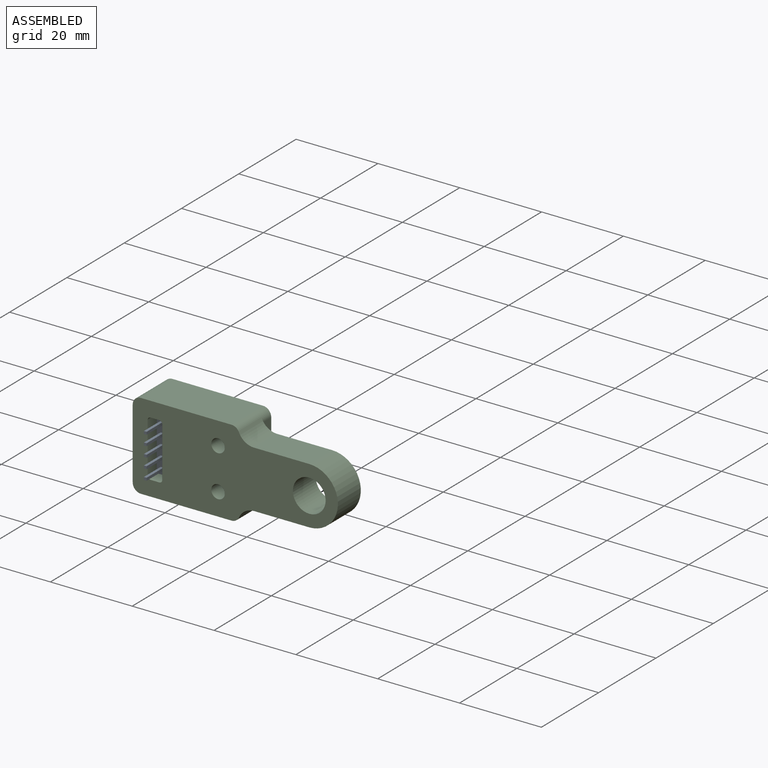
[diagram: assembled view]
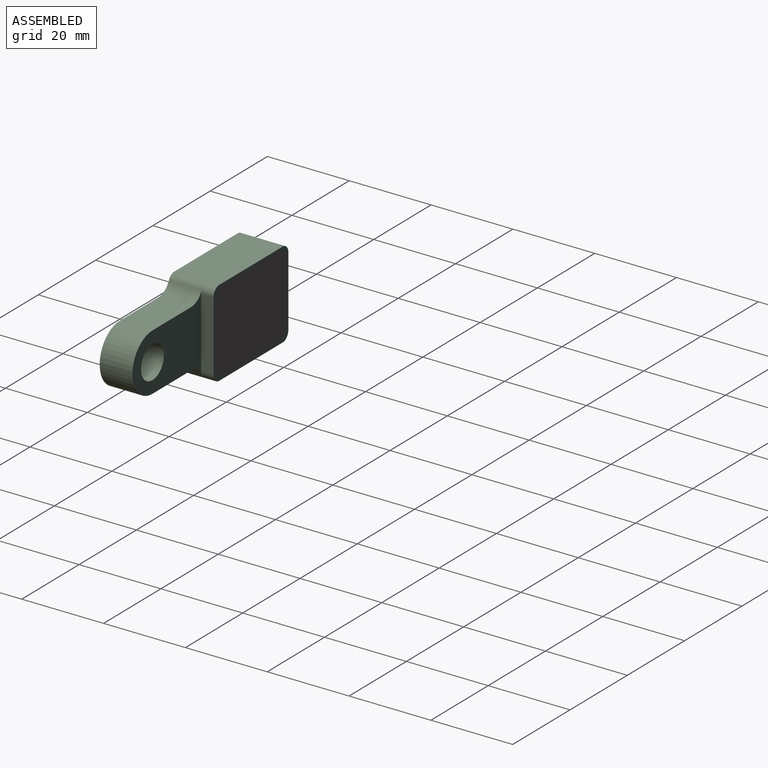
[diagram: assembled view, second angle]
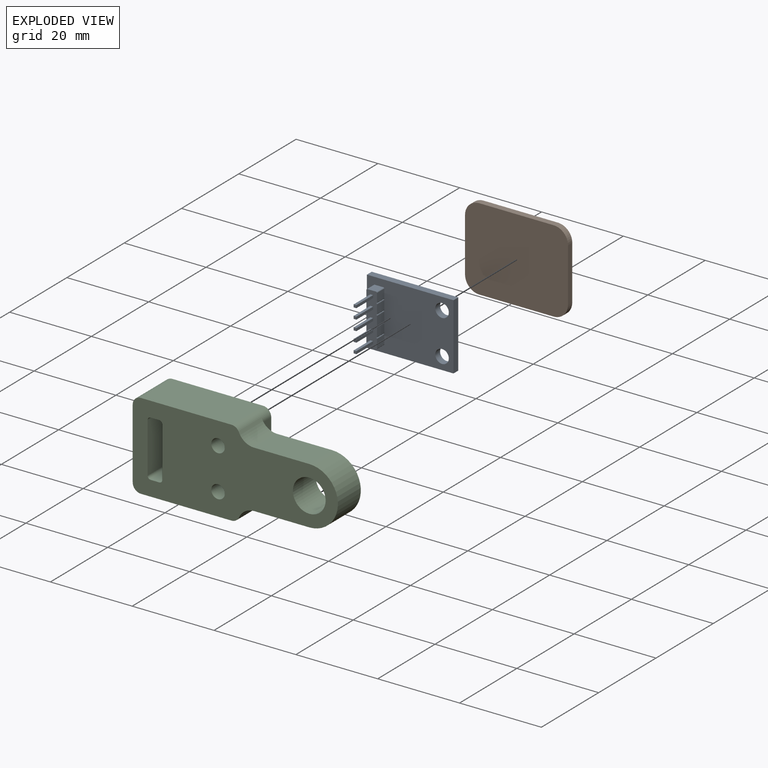
[diagram: exploded view]
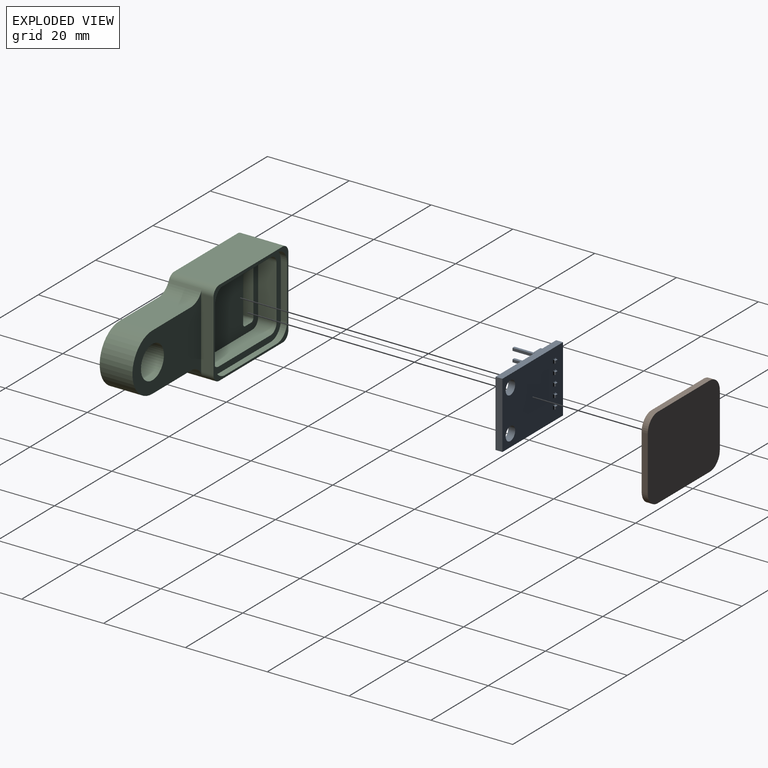
[diagram: exploded view, second angle]
ASSEMBLY  parts=3 mates=2
PART A: 111 faces, bbox 21.2x10.6x16.2 mm
  f0: plane 16.18x1.68mm, normal (-1,0,0), area 27.1mm2, adj f1,f3,f4,f5
  f1: plane 21.16x1.68mm, normal (0,0,1), area 35.5mm2, adj f0,f2,f4,f5
  f2: plane 16.18x1.68mm, normal (1,0,0), area 27.1mm2, adj f1,f3,f4,f5
  f3: plane 21.16x1.68mm, normal (0,0,-1), area 35.5mm2, adj f0,f2,f4,f5
  f4: plane 21.16x16.18mm, normal (0,1,0), area 292.4mm2, adj f0,f1,f2,f3,f6,f7,f23,f24
  f5: plane 21.16x16.18mm, normal (0,-1,0), area 318.4mm2, adj f0,f1,f2,f3,f19,f20,f21,f22
  f6: plane 2.54x2.08mm, normal (1,0,0), area 5.3mm2, adj f4,f8,f23,f25
  f7: plane 2.54x2.08mm, normal (-1,0,0), area 5.3mm2, adj f4,f8,f24,f26
  f8: plane 12.75x2.59mm, normal (0,1,0), area 30.7mm2, adj f6,f7,f10,f11,f12,f13,f23,f24
  f9: plane 0.66x0.66mm, normal (0,1,0), area 0.4mm2, adj f10,f11,f12,f13
  f10: plane 5.84x0.66mm, normal (0,0,1), area 3.9mm2, adj f8,f9,f11,f13
  f11: plane 5.84x0.66mm, normal (1,0,0), area 3.9mm2, adj f8,f9,f10,f12
  f12: plane 5.84x0.66mm, normal (0,0,-1), area 3.9mm2, adj f8,f9,f11,f13
  f13: plane 5.84x0.66mm, normal (-1,0,0), area 3.9mm2, adj f8,f9,f10,f12
  f14: plane 0.66x0.25mm, normal (-1,0,0), area 0.2mm2, adj f15,f17,f18,f19
  f15: plane 0.66x0.25mm, normal (0,0,-1), area 0.2mm2, adj f14,f16,f18,f21
  f16: plane 0.66x0.25mm, normal (1,0,0), area 0.2mm2, adj f15,f17,f18,f22
  f17: plane 0.66x0.25mm, normal (0,0,1), area 0.2mm2, adj f14,f16,f18,f20
  f18: plane 0.66x0.66mm, normal (0,-1,0), area 0.4mm2, adj f14,f15,f16,f17
  f19: cylinder r=0.25mm len=1.17mm, axis (0,0,1), area 0.3mm2, adj f5,f14,f20,f21
  f20: cylinder r=0.25mm len=1.17mm, axis (1,0,0), area 0.3mm2, adj f5,f17,f19,f22
  f21: cylinder r=0.25mm len=1.17mm, axis (-1,0,0), area 0.3mm2, adj f5,f15,f19,f22
  f22: cylinder r=0.25mm len=1.17mm, axis (0,0,-1), area 0.3mm2, adj f5,f16,f20,f21
  f23: cylinder r=0.25mm len=2.54mm, axis (0,-1,0), area 0.7mm2, adj f4,f6,f8,f90
  f24: cylinder r=0.25mm len=2.54mm, axis (0,1,0), area 0.7mm2, adj f4,f7,f8,f91
  f25: cylinder r=0.25mm len=2.54mm, axis (0,1,0), area 0.7mm2, adj f4,f6,f8,f65
  f26: cylinder r=0.25mm len=2.54mm, axis (0,-1,0), area 0.7mm2, adj f4,f7,f8,f64
  f27: cylinder r=0.25mm len=1.17mm, axis (0,0,1), area 0.3mm2, adj f5,f28,f30,f31
  f28: cylinder r=0.25mm len=1.17mm, axis (1,0,0), area 0.3mm2, adj f5,f27,f29,f34
  f29: cylinder r=0.25mm len=1.17mm, axis (0,0,-1), area 0.3mm2, adj f5,f28,f30,f33
  f30: cylinder r=0.25mm len=1.17mm, axis (-1,0,0), area 0.3mm2, adj f5,f27,f29,f32
  f31: plane 0.66x0.25mm, normal (-1,0,0), area 0.2mm2, adj f27,f32,f34,f35
  f32: plane 0.66x0.25mm, normal (0,0,-1), area 0.2mm2, adj f30,f31,f33,f35
  f33: plane 0.66x0.25mm, normal (1,0,0), area 0.2mm2, adj f29,f32,f34,f35
  f34: plane 0.66x0.25mm, normal (0,0,1), area 0.2mm2, adj f28,f31,f33,f35
  f35: plane 0.66x0.66mm, normal (0,-1,0), area 0.4mm2, adj f31,f32,f33,f34
  f36: cylinder r=0.25mm len=1.17mm, axis (0,0,1), area 0.3mm2, adj f5,f37,f39,f40
  f37: cylinder r=0.25mm len=1.17mm, axis (1,0,0), area 0.3mm2, adj f5,f36,f38,f43
  f38: cylinder r=0.25mm len=1.17mm, axis (0,0,-1), area 0.3mm2, adj f5,f37,f39,f42
  f39: cylinder r=0.25mm len=1.17mm, axis (-1,0,0), area 0.3mm2, adj f5,f36,f38,f41
  f40: plane 0.66x0.25mm, normal (-1,0,0), area 0.2mm2, adj f36,f41,f43,f44
  f41: plane 0.66x0.25mm, normal (0,0,-1), area 0.2mm2, adj f39,f40,f42,f44
  f42: plane 0.66x0.25mm, normal (1,0,0), area 0.2mm2, adj f38,f41,f43,f44
  f43: plane 0.66x0.25mm, normal (0,0,1), area 0.2mm2, adj f37,f40,f42,f44
  f44: plane 0.66x0.66mm, normal (0,-1,0), area 0.4mm2, adj f40,f41,f42,f43
  f45: cylinder r=0.25mm len=1.17mm, axis (0,0,1), area 0.3mm2, adj f5,f46,f48,f49
  f46: cylinder r=0.25mm len=1.17mm, axis (1,0,0), area 0.3mm2, adj f5,f45,f47,f52
  f47: cylinder r=0.25mm len=1.17mm, axis (0,0,-1), area 0.3mm2, adj f5,f46,f48,f51
  f48: cylinder r=0.25mm len=1.17mm, axis (-1,0,0), area 0.3mm2, adj f5,f45,f47,f50
  f49: plane 0.66x0.25mm, normal (-1,0,0), area 0.2mm2, adj f45,f50,f52,f53
  f50: plane 0.66x0.25mm, normal (0,0,-1), area 0.2mm2, adj f48,f49,f51,f53
  f51: plane 0.66x0.25mm, normal (1,0,0), area 0.2mm2, adj f47,f50,f52,f53
  f52: plane 0.66x0.25mm, normal (0,0,1), area 0.2mm2, adj f46,f49,f51,f53
  f53: plane 0.66x0.66mm, normal (0,-1,0), area 0.4mm2, adj f49,f50,f51,f52
  f54: cylinder r=0.25mm len=1.17mm, axis (0,0,1), area 0.3mm2, adj f5,f55,f57,f58
  f55: cylinder r=0.25mm len=1.17mm, axis (1,0,0), area 0.3mm2, adj f5,f54,f56,f61
  f56: cylinder r=0.25mm len=1.17mm, axis (0,0,-1), area 0.3mm2, adj f5,f55,f57,f60
  f57: cylinder r=0.25mm len=1.17mm, axis (-1,0,0), area 0.3mm2, adj f5,f54,f56,f59
  f58: plane 0.66x0.25mm, normal (-1,0,0), area 0.2mm2, adj f54,f59,f61,f62
  f59: plane 0.66x0.25mm, normal (0,0,-1), area 0.2mm2, adj f57,f58,f60,f62
  f60: plane 0.66x0.25mm, normal (1,0,0), area 0.2mm2, adj f56,f59,f61,f62
  f61: plane 0.66x0.25mm, normal (0,0,1), area 0.2mm2, adj f55,f58,f60,f62
  f62: plane 0.66x0.66mm, normal (0,-1,0), area 0.4mm2, adj f58,f59,f60,f61
  f63: plane 2.54x2.08mm, normal (-1,0,0), area 5.3mm2, adj f4,f8,f64,f68
  f64: cylinder r=0.25mm len=2.54mm, axis (0,1,0), area 0.7mm2, adj f4,f8,f26,f63
  f65: cylinder r=0.25mm len=2.54mm, axis (0,-1,0), area 0.7mm2, adj f4,f8,f25,f66
  f66: plane 2.54x2.08mm, normal (1,0,0), area 5.3mm2, adj f4,f8,f65,f67
  f67: cylinder r=0.25mm len=2.54mm, axis (0,1,0), area 0.7mm2, adj f4,f8,f66,f76
  f68: cylinder r=0.25mm len=2.54mm, axis (0,-1,0), area 0.7mm2, adj f4,f8,f63,f75
  f69: plane 0.66x0.66mm, normal (0,1,0), area 0.4mm2, adj f70,f71,f72,f73
  f70: plane 5.84x0.66mm, normal (0,0,1), area 3.9mm2, adj f8,f69,f71,f73
  f71: plane 5.84x0.66mm, normal (1,0,0), area 3.9mm2, adj f8,f69,f70,f72
  f72: plane 5.84x0.66mm, normal (0,0,-1), area 3.9mm2, adj f8,f69,f71,f73
  f73: plane 5.84x0.66mm, normal (-1,0,0), area 3.9mm2, adj f8,f69,f70,f72
  f74: plane 2.54x2.08mm, normal (-1,0,0), area 5.3mm2, adj f4,f8,f75,f80
  f75: cylinder r=0.25mm len=2.54mm, axis (0,1,0), area 0.7mm2, adj f4,f8,f68,f74
  f76: cylinder r=0.25mm len=2.54mm, axis (0,-1,0), area 0.7mm2, adj f4,f8,f67,f77
  f77: plane 2.54x2.08mm, normal (1,0,0), area 5.3mm2, adj f4,f8,f76,f78
  f78: cylinder r=0.25mm len=2.54mm, axis (0,1,0), area 1mm2, adj f4,f8,f77,f79
  f79: plane 2.54x2.08mm, normal (0,0,1), area 5.3mm2, adj f4,f8,f78,f80
  f80: cylinder r=0.25mm len=2.54mm, axis (0,-1,0), area 1mm2, adj f4,f8,f74,f79
  f81: plane 0.66x0.66mm, normal (0,1,0), area 0.4mm2, adj f82,f83,f84,f85
  f82: plane 5.84x0.66mm, normal (0,0,1), area 3.9mm2, adj f8,f81,f83,f85
  f83: plane 5.84x0.66mm, normal (1,0,0), area 3.9mm2, adj f8,f81,f82,f84
  f84: plane 5.84x0.66mm, normal (0,0,-1), area 3.9mm2, adj f8,f81,f83,f85
  f85: plane 5.84x0.66mm, normal (-1,0,0), area 3.9mm2, adj f8,f81,f82,f84
  f86: plane 2.54x2.08mm, normal (-1,0,0), area 5.3mm2, adj f4,f8,f87,f91
  f87: cylinder r=0.25mm len=2.54mm, axis (0,1,0), area 0.7mm2, adj f4,f8,f86,f103
  f88: cylinder r=0.25mm len=2.54mm, axis (0,-1,0), area 0.7mm2, adj f4,f8,f89,f102
  f89: plane 2.54x2.08mm, normal (1,0,0), area 5.3mm2, adj f4,f8,f88,f90
  f90: cylinder r=0.25mm len=2.54mm, axis (0,1,0), area 0.7mm2, adj f4,f8,f23,f89
  f91: cylinder r=0.25mm len=2.54mm, axis (0,-1,0), area 0.7mm2, adj f4,f8,f24,f86
  f92: plane 0.66x0.66mm, normal (0,1,0), area 0.4mm2, adj f93,f94,f95,f96
  f93: plane 5.84x0.66mm, normal (0,0,1), area 3.9mm2, adj f8,f92,f94,f96
  f94: plane 5.84x0.66mm, normal (1,0,0), area 3.9mm2, adj f8,f92,f93,f95
  f95: plane 5.84x0.66mm, normal (0,0,-1), area 3.9mm2, adj f8,f92,f94,f96
  f96: plane 5.84x0.66mm, normal (-1,0,0), area 3.9mm2, adj f8,f92,f93,f95
  f97: plane 2.54x2.08mm, normal (-1,0,0), area 5.3mm2, adj f4,f8,f98,f103
  f98: cylinder r=0.25mm len=2.54mm, axis (0,1,0), area 1mm2, adj f4,f8,f97,f99
  f99: plane 2.54x2.08mm, normal (0,0,-1), area 5.3mm2, adj f4,f8,f98,f100
  f100: cylinder r=0.25mm len=2.54mm, axis (0,-1,0), area 1mm2, adj f4,f8,f99,f101
  f101: plane 2.54x2.08mm, normal (1,0,0), area 5.3mm2, adj f4,f8,f100,f102
  f102: cylinder r=0.25mm len=2.54mm, axis (0,1,0), area 0.7mm2, adj f4,f8,f88,f101
  f103: cylinder r=0.25mm len=2.54mm, axis (0,-1,0), area 0.7mm2, adj f4,f8,f87,f97
  f104: plane 0.66x0.66mm, normal (0,1,0), area 0.4mm2, adj f105,f106,f107,f108
  f105: plane 5.84x0.66mm, normal (0,0,1), area 3.9mm2, adj f8,f104,f106,f108
  f106: plane 5.84x0.66mm, normal (1,0,0), area 3.9mm2, adj f8,f104,f105,f107
  f107: plane 5.84x0.66mm, normal (0,0,-1), area 3.9mm2, adj f8,f104,f106,f108
  f108: plane 5.84x0.66mm, normal (-1,0,0), area 3.9mm2, adj f8,f104,f105,f107
  f109: cylinder r=1.65mm len=3.3mm, axis (0,1,0), area 17.4mm2, adj f4,f5
  f110: cylinder r=1.65mm len=3.3mm, axis (0,1,0), area 17.4mm2, adj f4,f5
PART B: 10 faces, bbox 25.2x1.5x20.2 mm
  f0: plane 25.16x20.18mm, normal (0,-1,0), area 497.2mm2, adj f1,f2,f3,f4,f5,f6,f7,f8
  f1: cylinder r=3.5mm len=3.5mm, axis (0,1,0), area 8.2mm2, adj f0,f2,f8,f9
  f2: plane 18.16x1.5mm, normal (0,0,1), area 27.2mm2, adj f0,f1,f3,f9
  f3: cylinder r=3.5mm len=3.5mm, axis (0,1,0), area 8.2mm2, adj f0,f2,f4,f9
  f4: plane 13.18x1.5mm, normal (1,0,0), area 19.8mm2, adj f0,f3,f5,f9
  f5: cylinder r=3.5mm len=3.5mm, axis (0,1,0), area 8.2mm2, adj f0,f4,f6,f9
  f6: plane 18.16x1.5mm, normal (0,0,-1), area 27.2mm2, adj f0,f5,f7,f9
  f7: cylinder r=3.5mm len=3.5mm, axis (0,1,0), area 8.2mm2, adj f0,f6,f8,f9
  f8: plane 13.18x1.5mm, normal (-1,0,0), area 19.8mm2, adj f0,f1,f7,f9
  f9: plane 25.16x20.18mm, normal (0,1,0), area 497.2mm2, adj f1,f2,f3,f4,f5,f6,f7,f8
PART C: 45 faces, bbox 50.2x11x21.2 mm
  f0: plane 13.18x4.5mm, normal (1,0,0), area 59.3mm2, adj f5,f8,f11,f36
  f1: plane 18.16x4.5mm, normal (0,0,1), area 81.7mm2, adj f5,f6,f11,f36
  f2: plane 13.18x4.5mm, normal (-1,0,0), area 59.3mm2, adj f6,f7,f11,f36
  f3: plane 18.16x4.5mm, normal (0,0,-1), area 81.7mm2, adj f7,f8,f11,f36
  f4: plane 26.16x21.18mm, normal (0,1,0), area 53.4mm2, adj f19,f20,f21,f24,f28,f29,f30,f31
  f5: cylinder r=2mm len=4.5mm, axis (0,-1,0), area 14.1mm2, adj f0,f1,f11,f36
  f6: cylinder r=2mm len=4.5mm, axis (0,1,0), area 14.1mm2, adj f1,f2,f11,f36
  f7: cylinder r=2mm len=4.5mm, axis (0,-1,0), area 14.1mm2, adj f2,f3,f11,f36
  f8: cylinder r=2mm len=4.5mm, axis (0,1,0), area 14.1mm2, adj f0,f3,f11,f36
  f9: plane 50.16x21.18mm, normal (0,-1,0), area 753.5mm2, adj f10,f12,f13,f14,f15,f16,f17,f18
  f10: cylinder r=4mm len=8mm, axis (0,1,0), area 201.1mm2, adj f9,f32
  f11: plane 22.16x17.18mm, normal (0,1,0), area 311.2mm2, adj f0,f1,f2,f3,f5,f6,f7,f8
  f12: plane 5x2.08mm, normal (0,0,-1), area 10.4mm2, adj f9,f11,f13,f25
  f13: cylinder r=0.75mm len=5mm, axis (0,1,0), area 5.9mm2, adj f9,f11,f12,f14
  f14: plane 12.24x5mm, normal (1,0,0), area 61.2mm2, adj f9,f11,f13,f15
  f15: cylinder r=0.75mm len=5mm, axis (0,1,0), area 5.9mm2, adj f9,f11,f14,f16
  f16: plane 5x2.08mm, normal (0,0,1), area 10.4mm2, adj f9,f11,f15,f17
  f17: cylinder r=0.75mm len=5mm, axis (0,1,0), area 5.9mm2, adj f9,f11,f16,f18
  f18: plane 12.24x5mm, normal (-1,0,0), area 61.2mm2, adj f9,f11,f17,f25
  f19: plane 22.16x11mm, normal (0,0,-1), area 243.7mm2, adj f4,f9,f28,f31
  f20: plane 17.18x11mm, normal (-1,0,0), area 189mm2, adj f4,f9,f28,f29
  f21: plane 22.16x11mm, normal (0,0,1), area 243.7mm2, adj f4,f9,f29,f30
  f22: cylinder r=1.65mm len=5mm, axis (0,1,0), area 51.9mm2, adj f9,f11
  f23: cylinder r=1.65mm len=5mm, axis (0,1,0), area 51.9mm2, adj f9,f11
  f24: plane 17.18x3mm, normal (1,0,0), area 51.5mm2, adj f4,f30,f31,f32
  f25: cylinder r=0.75mm len=5mm, axis (0,1,0), area 5.9mm2, adj f9,f11,f12,f18
  f26: plane 13.51x8mm, normal (0,0,-1), area 108mm2, adj f9,f32,f33,f35
  f27: plane 13.51x8mm, normal (0,0,1), area 108mm2, adj f9,f32,f33,f34
  f28: cylinder r=2mm len=11mm, axis (0,-1,0), area 34.6mm2, adj f4,f9,f19,f20
  f29: cylinder r=2mm len=11mm, axis (0,1,0), area 34.6mm2, adj f4,f9,f20,f21
  f30: cylinder r=2mm len=11mm, axis (0,-1,0), area 27.9mm2, adj f4,f9,f21,f24,f32,f34
  f31: cylinder r=2mm len=11mm, axis (0,1,0), area 27.9mm2, adj f4,f9,f19,f24,f32,f35
  f32: plane 24.17x18.79mm, normal (0,1,0), area 268.9mm2, adj f10,f24,f26,f27,f30,f31,f33,f34
  f33: cylinder r=7mm len=14mm, axis (0,1,0), area 175.9mm2, adj f9,f26,f27,f32
  f34: cylinder r=4mm len=8mm, axis (0,-1,0), area 37mm2, adj f9,f27,f30,f32
  f35: cylinder r=4mm len=8mm, axis (0,1,0), area 37mm2, adj f9,f26,f31,f32
  f36: plane 25.16x20.18mm, normal (0,1,0), area 119.9mm2, adj f0,f1,f2,f3,f5,f6,f7,f8
  f37: cylinder r=3.5mm len=3.5mm, axis (0,1,0), area 8.2mm2, adj f4,f36,f38,f44
  f38: plane 18.16x1.5mm, normal (0,0,-1), area 27.2mm2, adj f4,f36,f37,f39
  f39: cylinder r=3.5mm len=3.5mm, axis (0,1,0), area 8.2mm2, adj f4,f36,f38,f40
  f40: plane 13.18x1.5mm, normal (-1,0,0), area 19.8mm2, adj f4,f36,f39,f41
  f41: cylinder r=3.5mm len=3.5mm, axis (0,1,0), area 8.2mm2, adj f4,f36,f40,f42
  f42: plane 18.16x1.5mm, normal (0,0,1), area 27.2mm2, adj f4,f36,f41,f43
  f43: cylinder r=3.5mm len=3.5mm, axis (0,1,0), area 8.2mm2, adj f4,f36,f42,f44
  f44: plane 13.18x1.5mm, normal (1,0,0), area 19.8mm2, adj f4,f36,f37,f43
PLACE A rot(axis=(1,0,0),180deg) t=(-27.57,-10.22,14.6)mm
PLACE B t=(-27.57,-13.57,14.6)mm
PLACE C t=(-27.57,-13.57,14.6)mm
MATE fastened A.f109 <-> C.f22  axis (0,-1,0) through (-9.2,-11.89,19.68)mm
MATE fastened B.f1 <-> C.f8  axis (0,-1,0) through (-26.07,-7.39,21.19)mm
